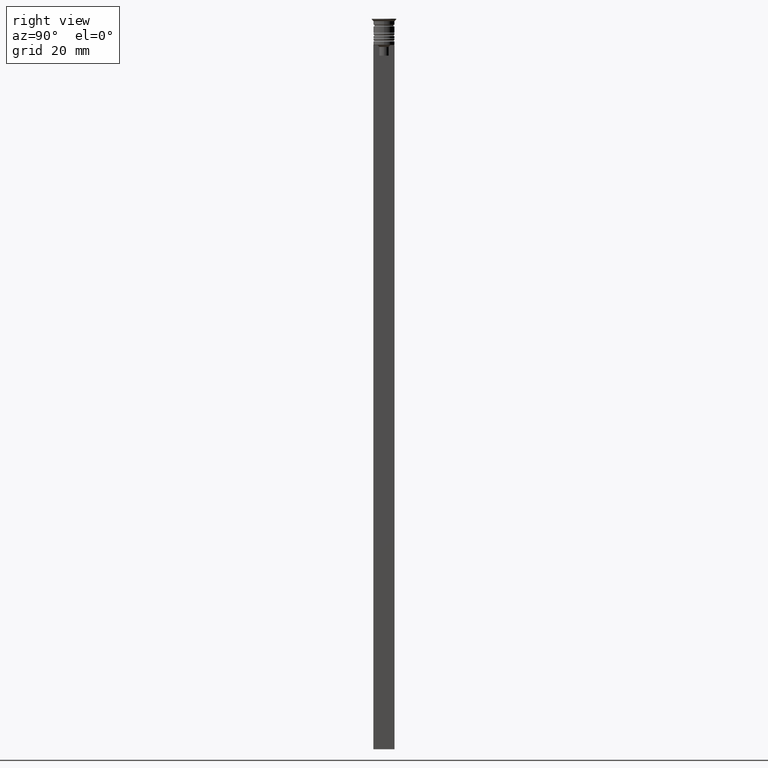
[diagram: clean part render]
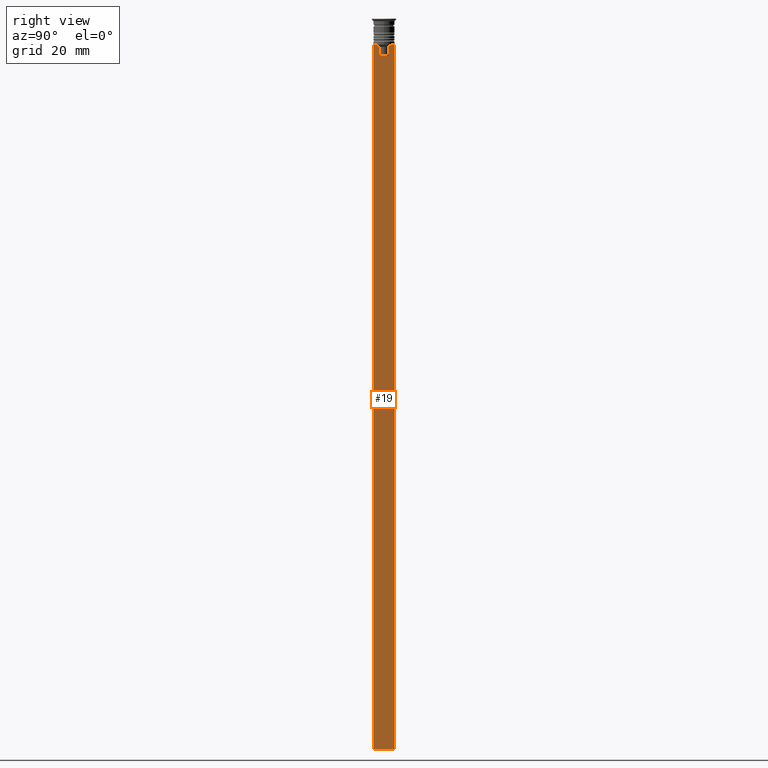
[diagram: same view with one face highlighted and labeled with its STEP entity id]
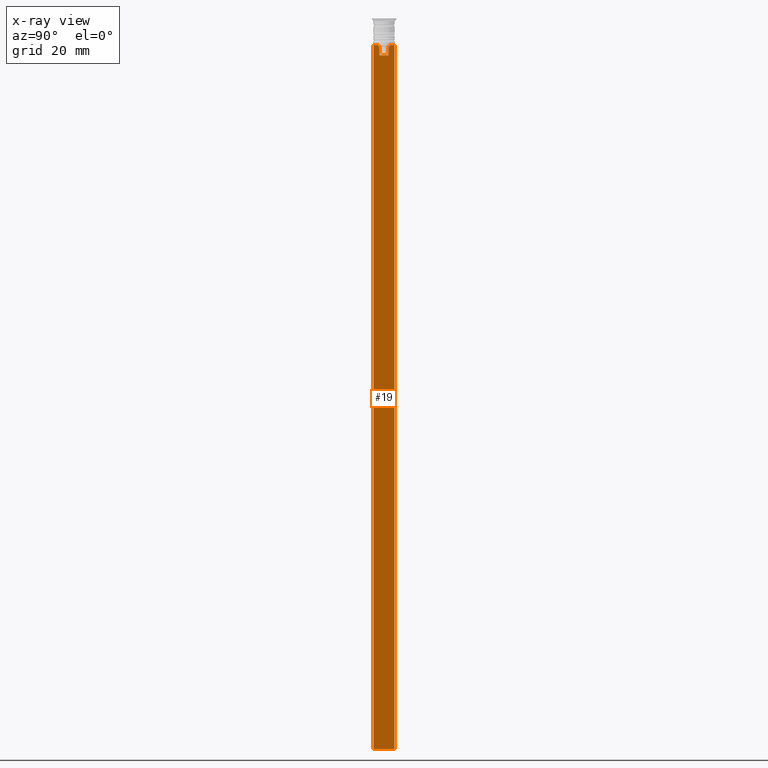
[diagram: x-ray of the same camera — body ghosted, the highlighted face saturated]
A machine part, right view. The second image highlights one B-rep face of the part: STEP entity #19.
The next image is the same camera in x-ray: the body ghosted, the highlighted face saturated — about 0% of this face is hidden behind the body in this view.
In plain terms, the highlighted planar face has unit normal (-1, 0, 0).
Its self-contained STEP definition (entity closure, byte-faithful):
#19 = ADVANCED_FACE ( 'NONE', ( #2038 ), #1744, .F. ) ;
#32 = EDGE_CURVE ( 'NONE', #1916, #1791, #1041, .T. ) ;
#56 = CARTESIAN_POINT ( 'NONE',  ( 0.4999999999999998890, -3.000000000000000000, -7.500000000000000000 ) ) ;
#65 = ORIENTED_EDGE ( 'NONE', *, *, #1120, .T. ) ;
#67 = CARTESIAN_POINT ( 'NONE',  ( 0.4999999999999998890, 1.833030277982335754, -7.500000000000000000 ) ) ;
#75 = CARTESIAN_POINT ( 'NONE',  ( 0.4999999999999998890, -3.000000000000000000, -207.5000000000000284 ) ) ;
#83 = DIRECTION ( 'NONE',  ( 0.000000000000000000, -1.000000000000000000, 0.000000000000000000 ) ) ;
#274 = CARTESIAN_POINT ( 'NONE',  ( 0.4999999999999998890, -1.659011726860414093, -7.667884880598472286 ) ) ;
#301 = AXIS2_PLACEMENT_3D ( 'NONE', #822, #1563, #1931 ) ;
#375 = ORIENTED_EDGE ( 'NONE', *, *, #394, .T. ) ;
#376 = CARTESIAN_POINT ( 'NONE',  ( 0.4999999999999998890, -1.307669683062199439, -8.000000000000000000 ) ) ;
#394 = EDGE_CURVE ( 'NONE', #1393, #2111, #1295, .T. ) ;
#397 = DIRECTION ( 'NONE',  ( 0.000000000000000000, 0.000000000000000000, -1.000000000000000000 ) ) ;
#439 = CARTESIAN_POINT ( 'NONE',  ( 0.4999999999999998890, 1.833030277982335754, -7.500000000000000000 ) ) ;
#490 = DIRECTION ( 'NONE',  ( 0.000000000000000000, 0.000000000000000000, -1.000000000000000000 ) ) ;
#502 = CARTESIAN_POINT ( 'NONE',  ( 0.4999999999999998890, 1.484355510416485835, -7.834966642958598015 ) ) ;
#604 = VECTOR ( 'NONE', #397, 1000.000000000000000 ) ;
#607 = LINE ( 'NONE', #75, #1137 ) ;
#609 = CARTESIAN_POINT ( 'NONE',  ( 0.4999999999999998890, 1.307669683062199439, -8.000000000000000000 ) ) ;
#610 = CARTESIAN_POINT ( 'NONE',  ( 0.4999999999999998890, 2.856571371417139904, -7.500000000000000000 ) ) ;
#630 = CARTESIAN_POINT ( 'NONE',  ( 0.4999999999999998890, 1.399999999999997691, -10.49999999999999822 ) ) ;
#634 = CARTESIAN_POINT ( 'NONE',  ( 0.4999999999999998890, -3.000000000000000000, -7.500000000000000000 ) ) ;
#682 = ORIENTED_EDGE ( 'NONE', *, *, #880, .T. ) ;
#706 = VECTOR ( 'NONE', #1432, 1000.000000000000000 ) ;
#721 = CARTESIAN_POINT ( 'NONE',  ( 0.4999999999999998890, -3.000000000000000000, -7.500000000000000000 ) ) ;
#739 = CARTESIAN_POINT ( 'NONE',  ( 0.4999999999999998890, 3.000000000000000000, -1.417237469701779329 ) ) ;
#758 = EDGE_CURVE ( 'NONE', #1393, #1983, #945, .T. ) ;
#760 = VERTEX_POINT ( 'NONE', #376 ) ;
#795 = CARTESIAN_POINT ( 'NONE',  ( 0.4999999999999998890, -1.833030277982335754, -7.500000000000000000 ) ) ;
#814 = LINE ( 'NONE', #634, #1633 ) ;
#822 = CARTESIAN_POINT ( 'NONE',  ( 0.4999999999999998890, -3.000000000000000000, -1.417237469701779329 ) ) ;
#846 = VERTEX_POINT ( 'NONE', #1812 ) ;
#860 = ORIENTED_EDGE ( 'NONE', *, *, #1463, .T. ) ;
#880 = EDGE_CURVE ( 'NONE', #2187, #1916, #1074, .T. ) ;
#945 = LINE ( 'NONE', #739, #604 ) ;
#948 = EDGE_CURVE ( 'NONE', #1546, #1188, #1560, .T. ) ;
#956 = CARTESIAN_POINT ( 'NONE',  ( 0.4999999999999998890, -3.000000000000000000, -1.417237469701779329 ) ) ;
#970 = DIRECTION ( 'NONE',  ( 0.000000000000000000, -1.000000000000000000, 0.000000000000000000 ) ) ;
#997 = ORIENTED_EDGE ( 'NONE', *, *, #1798, .T. ) ;
#1041 = LINE ( 'NONE', #1234, #2133 ) ;
#1074 = B_SPLINE_CURVE_WITH_KNOTS ( 'NONE', 3,
 ( #439, #1929, #502, #609 ),
 .UNSPECIFIED., .F., .F.,
 ( 4, 4 ),
 ( 0.003278537493109848298, 0.004003794023484941178 ),
 .UNSPECIFIED. ) ;
#1088 = CARTESIAN_POINT ( 'NONE',  ( 0.4999999999999998890, -3.000000000000000000, -7.500000000000000000 ) ) ;
#1120 = EDGE_CURVE ( 'NONE', #1188, #1983, #607, .T. ) ;
#1137 = VECTOR ( 'NONE', #1686, 1000.000000000000000 ) ;
#1139 = EDGE_CURVE ( 'NONE', #1512, #760, #1332, .T. ) ;
#1142 = LINE ( 'NONE', #1696, #2086 ) ;
#1144 = EDGE_LOOP ( 'NONE', ( #997, #682, #2253, #1236, #1564, #1901, #860, #1458, #2303, #65, #2097, #375 ) ) ;
#1153 = CARTESIAN_POINT ( 'NONE',  ( 0.4999999999999998890, -3.000000000000000000, -207.5000000000000284 ) ) ;
#1188 = VERTEX_POINT ( 'NONE', #1153 ) ;
#1193 = LINE ( 'NONE', #630, #1711 ) ;
#1234 = CARTESIAN_POINT ( 'NONE',  ( 0.4999999999999998890, 1.307669683062199439, 0.000000000000000000 ) ) ;
#1236 = ORIENTED_EDGE ( 'NONE', *, *, #2158, .T. ) ;
#1251 = VECTOR ( 'NONE', #1841, 1000.000000000000000 ) ;
#1279 = B_SPLINE_CURVE_WITH_KNOTS ( 'NONE', 3,
 ( #1721, #2094, #274, #795 ),
 .UNSPECIFIED., .F., .F.,
 ( 4, 4 ),
 ( 0.007225659348748082224, 0.007950554640278054835 ),
 .UNSPECIFIED. ) ;
#1289 = DIRECTION ( 'NONE',  ( -0.000000000000000000, -0.000000000000000000, 1.000000000000000000 ) ) ;
#1295 = LINE ( 'NONE', #1088, #1251 ) ;
#1332 = LINE ( 'NONE', #1818, #1882 ) ;
#1389 = CARTESIAN_POINT ( 'NONE',  ( 0.4999999999999998890, 1.307669683062199439, -10.49999999999999822 ) ) ;
#1393 = VERTEX_POINT ( 'NONE', #1797 ) ;
#1426 = LINE ( 'NONE', #721, #706 ) ;
#1432 = DIRECTION ( 'NONE',  ( 0.000000000000000000, -1.000000000000000000, 0.000000000000000000 ) ) ;
#1443 = CARTESIAN_POINT ( 'NONE',  ( 0.4999999999999998890, 1.307669683062199439, -8.000000000000000000 ) ) ;
#1458 = ORIENTED_EDGE ( 'NONE', *, *, #2323, .T. ) ;
#1463 = EDGE_CURVE ( 'NONE', #846, #1988, #1426, .T. ) ;
#1493 = DIRECTION ( 'NONE',  ( 0.000000000000000000, 0.000000000000000000, -1.000000000000000000 ) ) ;
#1512 = VERTEX_POINT ( 'NONE', #1982 ) ;
#1546 = VERTEX_POINT ( 'NONE', #56 ) ;
#1560 = LINE ( 'NONE', #956, #2028 ) ;
#1563 = DIRECTION ( 'NONE',  ( -1.000000000000000000, 0.000000000000000000, 0.000000000000000000 ) ) ;
#1564 = ORIENTED_EDGE ( 'NONE', *, *, #1139, .T. ) ;
#1633 = VECTOR ( 'NONE', #83, 1000.000000000000000 ) ;
#1686 = DIRECTION ( 'NONE',  ( 0.000000000000000000, 1.000000000000000000, 0.000000000000000000 ) ) ;
#1696 = CARTESIAN_POINT ( 'NONE',  ( 0.4999999999999998890, -3.000000000000000000, -7.500000000000000000 ) ) ;
#1711 = VECTOR ( 'NONE', #970, 1000.000000000000000 ) ;
#1719 = EDGE_CURVE ( 'NONE', #760, #846, #1279, .T. ) ;
#1721 = CARTESIAN_POINT ( 'NONE',  ( 0.4999999999999998890, -1.307669683062199439, -8.000000000000000000 ) ) ;
#1744 = PLANE ( 'NONE',  #301 ) ;
#1791 = VERTEX_POINT ( 'NONE', #1389 ) ;
#1797 = CARTESIAN_POINT ( 'NONE',  ( 0.4999999999999998890, 3.000000000000000000, -7.500000000000000000 ) ) ;
#1798 = EDGE_CURVE ( 'NONE', #2111, #2187, #814, .T. ) ;
#1812 = CARTESIAN_POINT ( 'NONE',  ( 0.4999999999999998890, -1.833030277982335754, -7.500000000000000000 ) ) ;
#1818 = CARTESIAN_POINT ( 'NONE',  ( 0.4999999999999998890, -1.307669683062199439, 0.000000000000000000 ) ) ;
#1825 = CARTESIAN_POINT ( 'NONE',  ( 0.4999999999999998890, -2.856571371417139904, -7.500000000000000000 ) ) ;
#1841 = DIRECTION ( 'NONE',  ( 0.000000000000000000, -1.000000000000000000, 0.000000000000000000 ) ) ;
#1853 = DIRECTION ( 'NONE',  ( 0.000000000000000000, -1.000000000000000000, 0.000000000000000000 ) ) ;
#1882 = VECTOR ( 'NONE', #1289, 1000.000000000000000 ) ;
#1901 = ORIENTED_EDGE ( 'NONE', *, *, #1719, .T. ) ;
#1916 = VERTEX_POINT ( 'NONE', #1443 ) ;
#1929 = CARTESIAN_POINT ( 'NONE',  ( 0.4999999999999998890, 1.659046061654642967, -7.667851756010362507 ) ) ;
#1931 = DIRECTION ( 'NONE',  ( 0.000000000000000000, 0.000000000000000000, 1.000000000000000000 ) ) ;
#1982 = CARTESIAN_POINT ( 'NONE',  ( 0.4999999999999998890, -1.307669683062199439, -10.49999999999999822 ) ) ;
#1983 = VERTEX_POINT ( 'NONE', #2167 ) ;
#1988 = VERTEX_POINT ( 'NONE', #1825 ) ;
#2028 = VECTOR ( 'NONE', #1493, 1000.000000000000000 ) ;
#2038 = FACE_OUTER_BOUND ( 'NONE', #1144, .T. ) ;
#2086 = VECTOR ( 'NONE', #1853, 1000.000000000000000 ) ;
#2094 = CARTESIAN_POINT ( 'NONE',  ( 0.4999999999999998890, -1.484307477388859153, -7.835011508197190722 ) ) ;
#2097 = ORIENTED_EDGE ( 'NONE', *, *, #758, .F. ) ;
#2111 = VERTEX_POINT ( 'NONE', #610 ) ;
#2133 = VECTOR ( 'NONE', #490, 1000.000000000000000 ) ;
#2158 = EDGE_CURVE ( 'NONE', #1791, #1512, #1193, .T. ) ;
#2167 = CARTESIAN_POINT ( 'NONE',  ( 0.4999999999999998890, 3.000000000000000000, -207.5000000000000284 ) ) ;
#2187 = VERTEX_POINT ( 'NONE', #67 ) ;
#2253 = ORIENTED_EDGE ( 'NONE', *, *, #32, .T. ) ;
#2303 = ORIENTED_EDGE ( 'NONE', *, *, #948, .T. ) ;
#2323 = EDGE_CURVE ( 'NONE', #1988, #1546, #1142, .T. ) ;